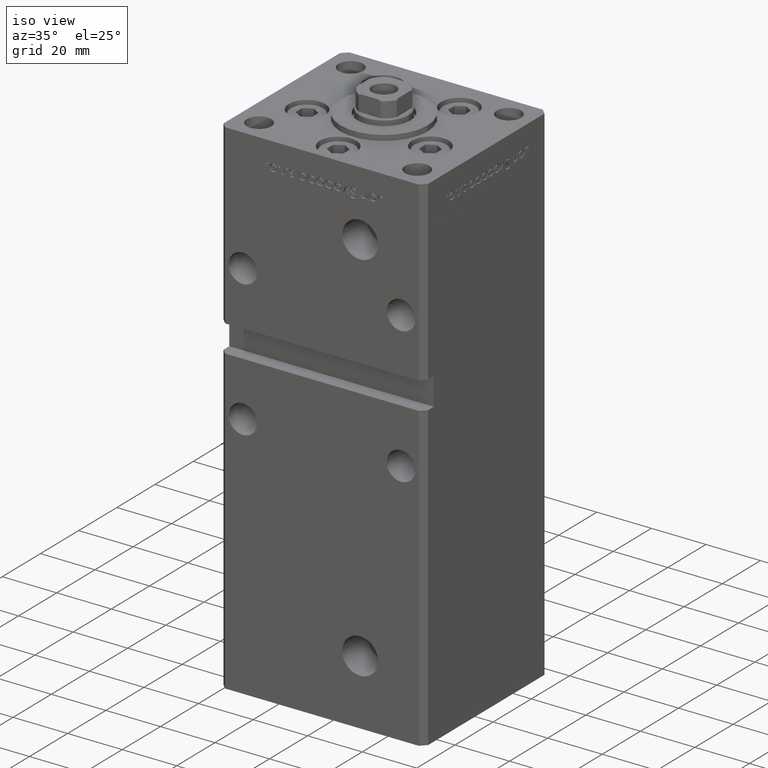
[diagram: clean part render]
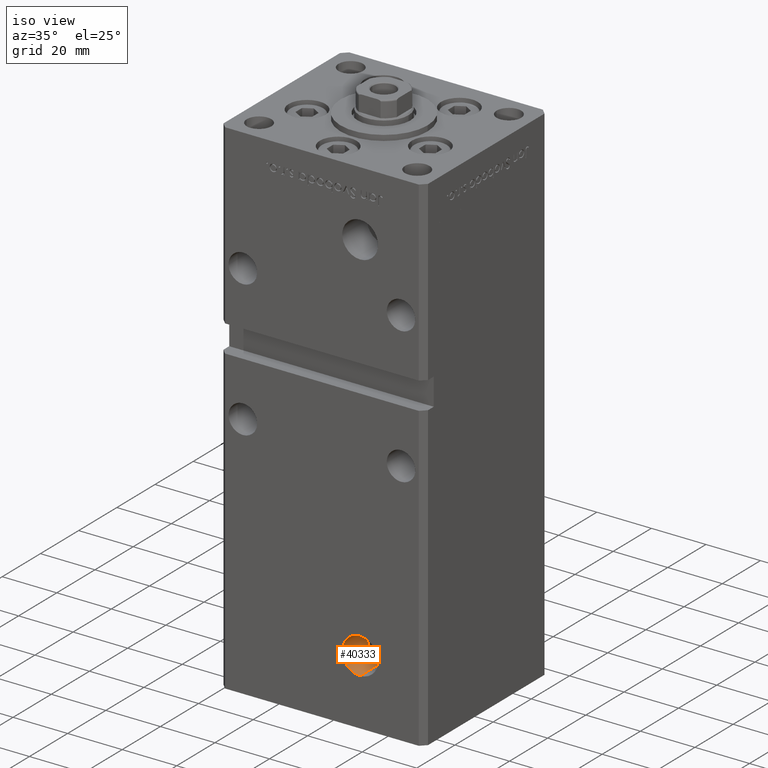
[diagram: same view with one face highlighted and labeled with its STEP entity id]
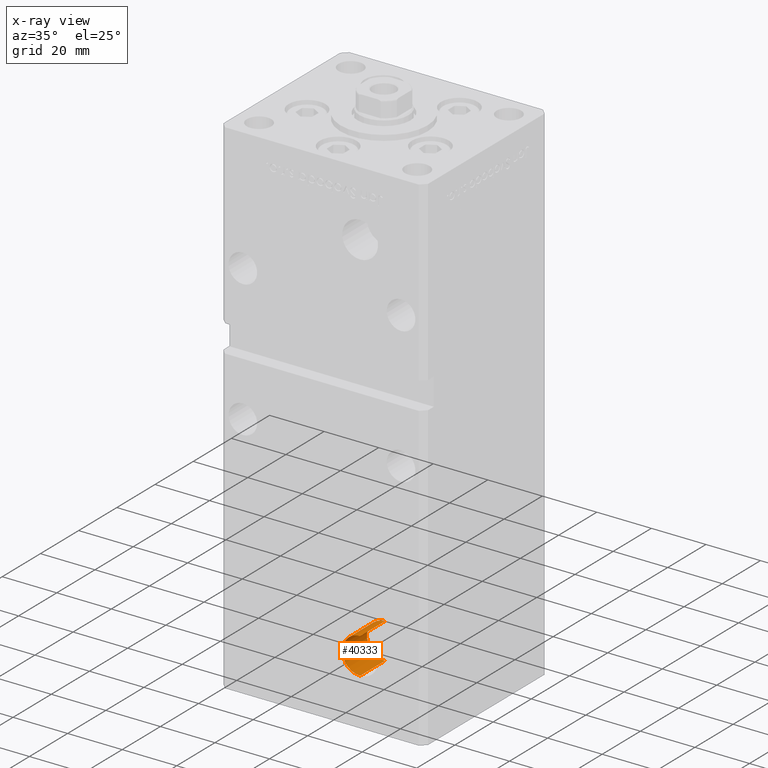
[diagram: x-ray of the same camera — body ghosted, the highlighted face saturated]
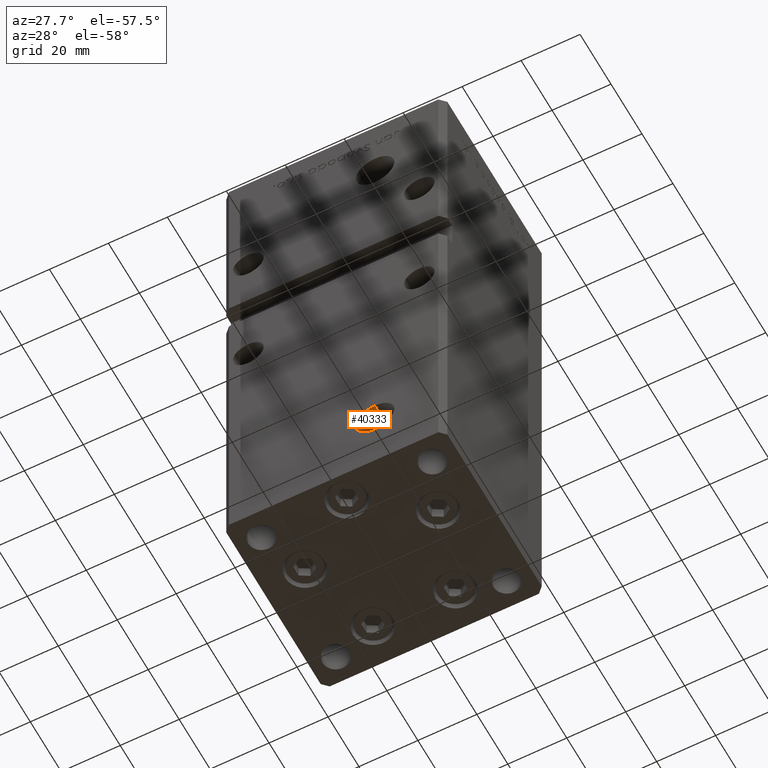
[diagram: same view with one face highlighted and labeled with its STEP entity id]
A machine part, iso view. The second image highlights one B-rep face of the part: STEP entity #40333.
The next image is the same camera in x-ray: the body ghosted, the highlighted face saturated — about 0% of this face is hidden behind the body in this view.
A second angle (auxiliary view) of the same face is appended — the face is thin or edge-on in the first view.
In plain terms, the highlighted cylindrical surface (edge-blend (fillet) strip) has radius 6.58 mm, axis along (-0, -1, -0).
Its self-contained STEP definition (entity closure, byte-faithful):
#1484 = EDGE_CURVE ( 'NONE', #45723, #40703, #49908, .T. ) ;
#1826 = CIRCLE ( 'NONE', #21602, 6.579999999999998295 ) ;
#1970 = VECTOR ( 'NONE', #46894, 1000.000000000000000 ) ;
#3518 = EDGE_CURVE ( 'NONE', #17043, #3587, #47427, .T. ) ;
#3587 = VERTEX_POINT ( 'NONE', #10607 ) ;
#7437 = DIRECTION ( 'NONE',  ( 0.000000000000000000, -1.000000000000000000, 0.000000000000000000 ) ) ;
#9312 = CARTESIAN_POINT ( 'NONE',  ( 13.99999999999999112, -19.50000000000000355, 15.58000000000000718 ) ) ;
#10607 = CARTESIAN_POINT ( 'NONE',  ( 13.99999999999999112, -32.50000000000000000, 2.420000000000009699 ) ) ;
#11168 = CARTESIAN_POINT ( 'NONE',  ( 13.99999999999999112, -19.50000000000000355, 9.000000000000007105 ) ) ;
#15087 = ORIENTED_EDGE ( 'NONE', *, *, #1484, .T. ) ;
#16716 = FACE_OUTER_BOUND ( 'NONE', #32060, .T. ) ;
#17009 = CARTESIAN_POINT ( 'NONE',  ( 13.99999999999999112, -19.50000000000000355, 2.420000000000009699 ) ) ;
#17043 = VERTEX_POINT ( 'NONE', #17009 ) ;
#18906 = EDGE_CURVE ( 'NONE', #45723, #17043, #51290, .T. ) ;
#18939 = ORIENTED_EDGE ( 'NONE', *, *, #28029, .T. ) ;
#19224 = DIRECTION ( 'NONE',  ( -0.000000000000000000, -1.000000000000000000, -0.000000000000000000 ) ) ;
#21602 = AXIS2_PLACEMENT_3D ( 'NONE', #35394, #7437, #30852 ) ;
#24452 = ORIENTED_EDGE ( 'NONE', *, *, #18906, .F. ) ;
#25722 = DIRECTION ( 'NONE',  ( -0.000000000000000000, -1.000000000000000000, -0.000000000000000000 ) ) ;
#27925 = DIRECTION ( 'NONE',  ( 0.000000000000000000, 0.000000000000000000, -1.000000000000000000 ) ) ;
#28029 = EDGE_CURVE ( 'NONE', #40703, #3587, #1826, .T. ) ;
#30852 = DIRECTION ( 'NONE',  ( 0.000000000000000000, 0.000000000000000000, -1.000000000000000000 ) ) ;
#31616 = DIRECTION ( 'NONE',  ( 0.000000000000000000, 0.000000000000000000, -1.000000000000000000 ) ) ;
#32060 = EDGE_LOOP ( 'NONE', ( #24452, #15087, #18939, #38871 ) ) ;
#33740 = DIRECTION ( 'NONE',  ( 0.000000000000000000, -1.000000000000000000, 0.000000000000000000 ) ) ;
#35394 = CARTESIAN_POINT ( 'NONE',  ( 13.99999999999999112, -32.50000000000000000, 9.000000000000007105 ) ) ;
#38130 = CARTESIAN_POINT ( 'NONE',  ( 13.99999999999999112, -32.50000000000000000, 15.58000000000000718 ) ) ;
#38871 = ORIENTED_EDGE ( 'NONE', *, *, #3518, .F. ) ;
#40333 = ADVANCED_FACE ( 'NONE', ( #16716 ), #49525, .F. ) ;
#40703 = VERTEX_POINT ( 'NONE', #38130 ) ;
#41799 = AXIS2_PLACEMENT_3D ( 'NONE', #53185, #33740, #27925 ) ;
#42638 = CARTESIAN_POINT ( 'NONE',  ( 13.99999999999999112, -19.50000000000000355, 15.58000000000000718 ) ) ;
#45723 = VERTEX_POINT ( 'NONE', #42638 ) ;
#46894 = DIRECTION ( 'NONE',  ( -0.000000000000000000, -1.000000000000000000, -0.000000000000000000 ) ) ;
#47427 = LINE ( 'NONE', #51735, #1970 ) ;
#49464 = AXIS2_PLACEMENT_3D ( 'NONE', #11168, #19224, #31616 ) ;
#49525 = CYLINDRICAL_SURFACE ( 'NONE', #49464, 6.579999999999998295 ) ;
#49908 = LINE ( 'NONE', #9312, #52600 ) ;
#51290 = CIRCLE ( 'NONE', #41799, 6.579999999999998295 ) ;
#51735 = CARTESIAN_POINT ( 'NONE',  ( 13.99999999999999112, -19.50000000000000355, 2.420000000000009699 ) ) ;
#52600 = VECTOR ( 'NONE', #25722, 1000.000000000000000 ) ;
#53185 = CARTESIAN_POINT ( 'NONE',  ( 13.99999999999999112, -19.50000000000000355, 9.000000000000007105 ) ) ;